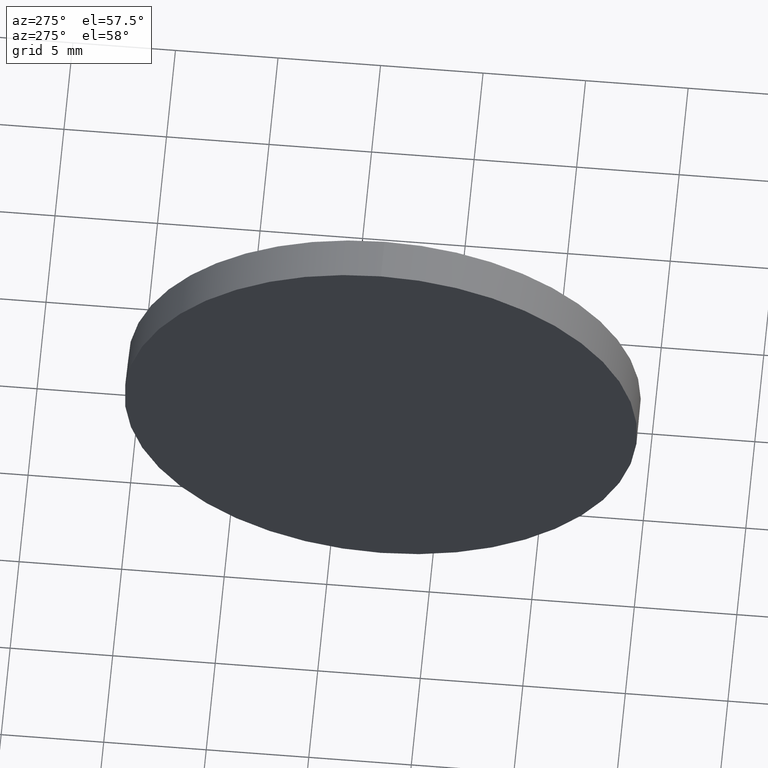
[diagram: clean part render]
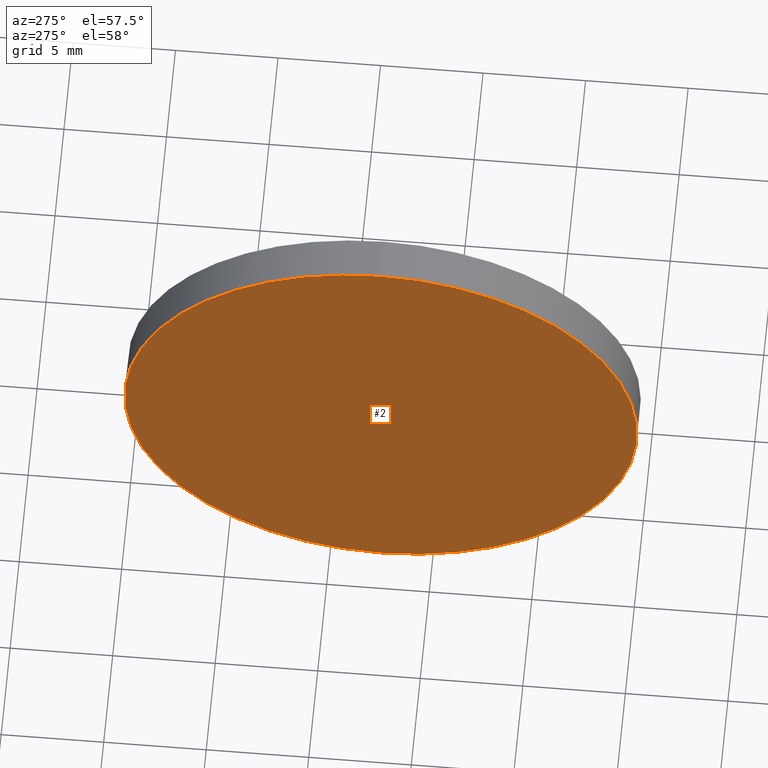
[diagram: same view with one face highlighted and labeled with its STEP entity id]
A machine part, auxiliary view. The second image highlights one B-rep face of the part: STEP entity #2.
In plain terms, the highlighted planar face has unit normal (1, 0, 0).
Its self-contained STEP definition (entity closure, byte-faithful):
#2 = ADVANCED_FACE ( 'NONE', ( #147 ), #123, .F. ) ;
#4 = CIRCLE ( 'NONE', #157, 12.50000000000000400 ) ;
#9 = EDGE_LOOP ( 'NONE', ( #89, #74 ) ) ;
#11 = CARTESIAN_POINT ( 'NONE',  ( 56.69840306798278100, 32.51047268998112800, -12.50000000000000400 ) ) ;
#12 = CARTESIAN_POINT ( 'NONE',  ( 56.69840306798278100, 32.51047268998112800, 0.0000000000000000000 ) ) ;
#24 = EDGE_CURVE ( 'NONE', #37, #180, #117, .T. ) ;
#30 = CARTESIAN_POINT ( 'NONE',  ( 56.69840306798278100, 32.51047268998112800, 12.50000000000000400 ) ) ;
#37 = VERTEX_POINT ( 'NONE', #11 ) ;
#38 = CARTESIAN_POINT ( 'NONE',  ( 56.69840306798278100, 32.51047268998112800, 0.0000000000000000000 ) ) ;
#40 = DIRECTION ( 'NONE',  ( 1.000000000000000000, 0.0000000000000000000, 0.0000000000000000000 ) ) ;
#52 = CARTESIAN_POINT ( 'NONE',  ( 56.69840306798278100, 32.51047268998112800, 0.0000000000000000000 ) ) ;
#66 = DIRECTION ( 'NONE',  ( 0.0000000000000000000, 0.0000000000000000000, 1.000000000000000000 ) ) ;
#72 = EDGE_CURVE ( 'NONE', #180, #37, #4, .T. ) ;
#74 = ORIENTED_EDGE ( 'NONE', *, *, #24, .T. ) ;
#89 = ORIENTED_EDGE ( 'NONE', *, *, #72, .T. ) ;
#94 = DIRECTION ( 'NONE',  ( -1.000000000000000000, -0.0000000000000000000, -0.0000000000000000000 ) ) ;
#110 = DIRECTION ( 'NONE',  ( 0.0000000000000000000, 0.0000000000000000000, 1.000000000000000000 ) ) ;
#115 = AXIS2_PLACEMENT_3D ( 'NONE', #12, #40, #151 ) ;
#117 = CIRCLE ( 'NONE', #172, 12.50000000000000400 ) ;
#123 = PLANE ( 'NONE',  #115 ) ;
#147 = FACE_OUTER_BOUND ( 'NONE', #9, .T. ) ;
#151 = DIRECTION ( 'NONE',  ( 0.0000000000000000000, 0.0000000000000000000, -1.000000000000000000 ) ) ;
#157 = AXIS2_PLACEMENT_3D ( 'NONE', #52, #94, #110 ) ;
#172 = AXIS2_PLACEMENT_3D ( 'NONE', #38, #179, #66 ) ;
#179 = DIRECTION ( 'NONE',  ( -1.000000000000000000, -0.0000000000000000000, -0.0000000000000000000 ) ) ;
#180 = VERTEX_POINT ( 'NONE', #30 ) ;